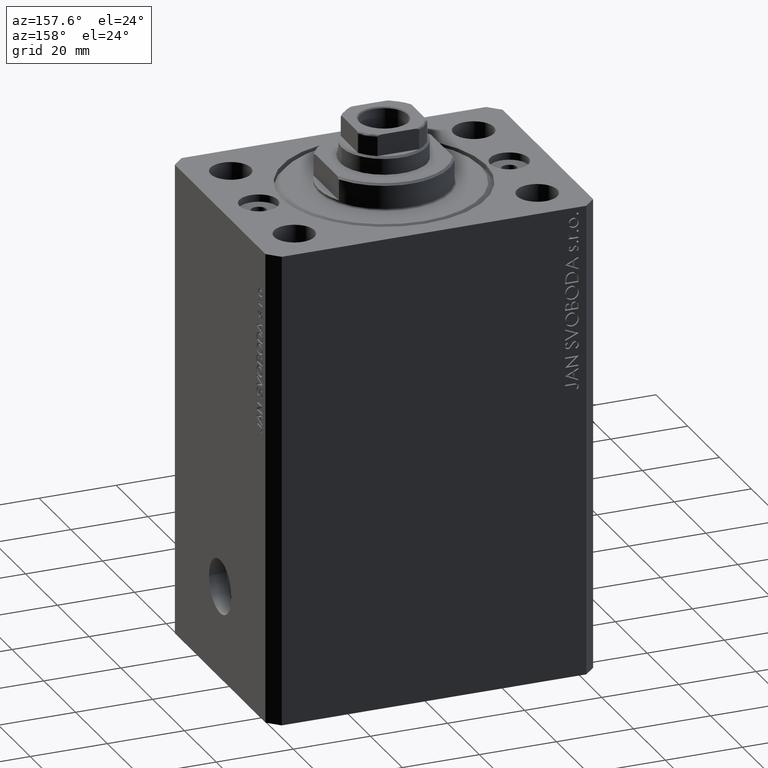
[diagram: clean part render]
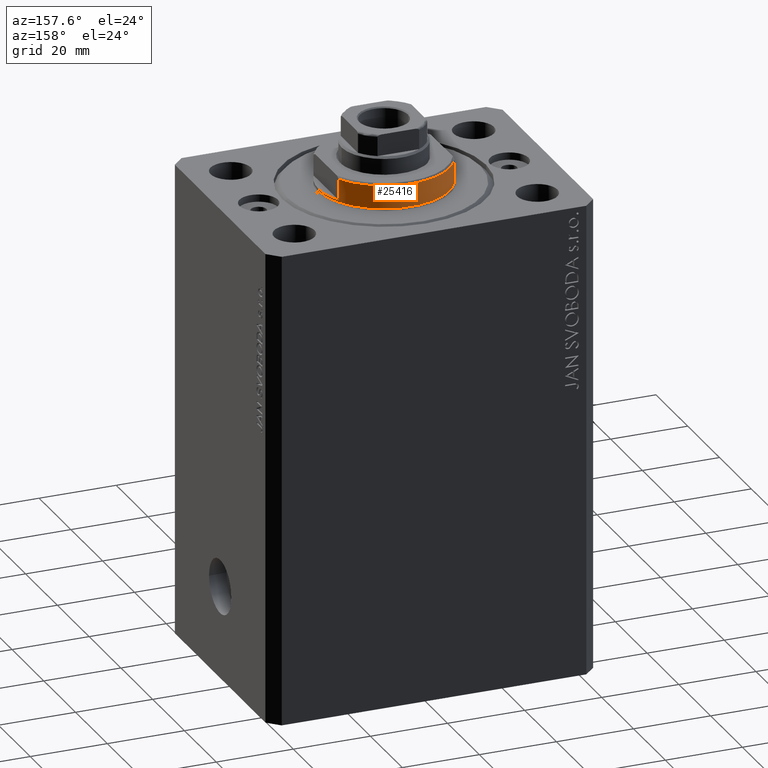
[diagram: same view with one face highlighted and labeled with its STEP entity id]
A machine part, auxiliary view. The second image highlights one B-rep face of the part: STEP entity #25416.
In plain terms, the highlighted cylindrical surface (partial cylindrical patch) has radius 17 mm, axis along (0, 0, -1).
Its self-contained STEP definition (entity closure, byte-faithful):
#416 = VECTOR ( 'NONE', #6359, 1000.000000000000000 ) ;
#1362 = CYLINDRICAL_SURFACE ( 'NONE', #25738, 17.00000000000000000 ) ;
#1771 = CARTESIAN_POINT ( 'NONE',  ( 0.000000000000000000, 0.000000000000000000, -1.000000000000000000 ) ) ;
#2391 = VECTOR ( 'NONE', #34756, 1000.000000000000000 ) ;
#3009 = ORIENTED_EDGE ( 'NONE', *, *, #3265, .F. ) ;
#3204 = DIRECTION ( 'NONE',  ( 0.000000000000000000, 0.000000000000000000, 1.000000000000000000 ) ) ;
#3265 = EDGE_CURVE ( 'NONE', #38803, #5087, #11822, .T. ) ;
#3711 = EDGE_CURVE ( 'NONE', #9244, #5087, #13200, .T. ) ;
#3788 = CARTESIAN_POINT ( 'NONE',  ( -17.00000000000000000, 2.081899558550500280E-15, -0.4999999999999995559 ) ) ;
#4323 = EDGE_CURVE ( 'NONE', #26597, #44139, #23985, .T. ) ;
#5087 = VERTEX_POINT ( 'NONE', #34083 ) ;
#5359 = DIRECTION ( 'NONE',  ( -1.000000000000000000, 0.000000000000000000, 0.000000000000000000 ) ) ;
#6081 = DIRECTION ( 'NONE',  ( -0.000000000000000000, -0.000000000000000000, -1.000000000000000000 ) ) ;
#6359 = DIRECTION ( 'NONE',  ( -0.000000000000000000, -0.000000000000000000, 1.000000000000000000 ) ) ;
#6544 = ORIENTED_EDGE ( 'NONE', *, *, #37179, .T. ) ;
#6675 = CARTESIAN_POINT ( 'NONE',  ( 14.99999999999999645, 8.000000000000003553, -1.000000000000000000 ) ) ;
#6931 = ORIENTED_EDGE ( 'NONE', *, *, #3711, .T. ) ;
#7599 = VERTEX_POINT ( 'NONE', #6675 ) ;
#7865 = CARTESIAN_POINT ( 'NONE',  ( 15.00000000000000000, 8.000000000000001776, -6.500000000000000888 ) ) ;
#9244 = VERTEX_POINT ( 'NONE', #3788 ) ;
#9283 = EDGE_CURVE ( 'NONE', #11512, #44139, #28437, .T. ) ;
#9489 = CARTESIAN_POINT ( 'NONE',  ( -17.00000000000000000, 2.081899558550500280E-15, -1.000000000000000000 ) ) ;
#9739 = AXIS2_PLACEMENT_3D ( 'NONE', #1771, #36086, #5359 ) ;
#11512 = VERTEX_POINT ( 'NONE', #40446 ) ;
#11727 = CIRCLE ( 'NONE', #15309, 17.00000000000000000 ) ;
#11822 = LINE ( 'NONE', #15180, #26099 ) ;
#11901 = EDGE_CURVE ( 'NONE', #22309, #7599, #40223, .T. ) ;
#13047 = EDGE_CURVE ( 'NONE', #7599, #38803, #42665, .T. ) ;
#13200 = CIRCLE ( 'NONE', #43978, 17.00000000000000000 ) ;
#13482 = CARTESIAN_POINT ( 'NONE',  ( 0.000000000000000000, 0.000000000000000000, -0.4999999999999995559 ) ) ;
#13708 = DIRECTION ( 'NONE',  ( 1.000000000000000000, 0.000000000000000000, 0.000000000000000000 ) ) ;
#14608 = CARTESIAN_POINT ( 'NONE',  ( 0.000000000000000000, 0.000000000000000000, -7.000000000000000000 ) ) ;
#15180 = CARTESIAN_POINT ( 'NONE',  ( 17.00000000000000000, 0.000000000000000000, -7.000000000000000000 ) ) ;
#15309 = AXIS2_PLACEMENT_3D ( 'NONE', #17555, #3204, #23614 ) ;
#17048 = CARTESIAN_POINT ( 'NONE',  ( 0.000000000000000000, 0.000000000000000000, -1.000000000000000000 ) ) ;
#17555 = CARTESIAN_POINT ( 'NONE',  ( 0.000000000000000000, 0.000000000000000000, -6.500000000000000000 ) ) ;
#17758 = DIRECTION ( 'NONE',  ( 1.000000000000000000, 0.000000000000000000, 0.000000000000000000 ) ) ;
#18936 = ORIENTED_EDGE ( 'NONE', *, *, #37589, .T. ) ;
#18983 = DIRECTION ( 'NONE',  ( -0.000000000000000000, -0.000000000000000000, 1.000000000000000000 ) ) ;
#21086 = CARTESIAN_POINT ( 'NONE',  ( -17.00000000000000000, 2.081899558550500280E-15, -7.000000000000000000 ) ) ;
#21778 = DIRECTION ( 'NONE',  ( -0.000000000000000000, -0.000000000000000000, 1.000000000000000000 ) ) ;
#21993 = FACE_OUTER_BOUND ( 'NONE', #28908, .T. ) ;
#22309 = VERTEX_POINT ( 'NONE', #7865 ) ;
#23459 = CARTESIAN_POINT ( 'NONE',  ( -14.99999999999999645, 8.000000000000003553, -1.000000000000000000 ) ) ;
#23614 = DIRECTION ( 'NONE',  ( -1.000000000000000000, 0.000000000000000000, 0.000000000000000000 ) ) ;
#23985 = CIRCLE ( 'NONE', #39737, 17.00000000000000000 ) ;
#24010 = CARTESIAN_POINT ( 'NONE',  ( 17.00000000000000000, 0.000000000000000000, -1.000000000000000000 ) ) ;
#25080 = CARTESIAN_POINT ( 'NONE',  ( -15.00000000000000000, 8.000000000000001776, -7.000000000000000000 ) ) ;
#25416 = ADVANCED_FACE ( 'NONE', ( #21993 ), #1362, .T. ) ;
#25738 = AXIS2_PLACEMENT_3D ( 'NONE', #14608, #21778, #17758 ) ;
#26099 = VECTOR ( 'NONE', #18983, 1000.000000000000000 ) ;
#26597 = VERTEX_POINT ( 'NONE', #9489 ) ;
#28239 = LINE ( 'NONE', #21086, #2391 ) ;
#28437 = LINE ( 'NONE', #25080, #34834 ) ;
#28908 = EDGE_LOOP ( 'NONE', ( #42314, #18936, #6931, #3009, #41000, #43043, #6544, #30559 ) ) ;
#30559 = ORIENTED_EDGE ( 'NONE', *, *, #9283, .T. ) ;
#34075 = DIRECTION ( 'NONE',  ( 0.000000000000000000, 0.000000000000000000, -1.000000000000000000 ) ) ;
#34083 = CARTESIAN_POINT ( 'NONE',  ( 17.00000000000000000, 0.000000000000000000, -0.4999999999999995559 ) ) ;
#34756 = DIRECTION ( 'NONE',  ( -0.000000000000000000, -0.000000000000000000, 1.000000000000000000 ) ) ;
#34834 = VECTOR ( 'NONE', #35388, 1000.000000000000000 ) ;
#35388 = DIRECTION ( 'NONE',  ( -0.000000000000000000, -0.000000000000000000, 1.000000000000000000 ) ) ;
#36086 = DIRECTION ( 'NONE',  ( 0.000000000000000000, 0.000000000000000000, -1.000000000000000000 ) ) ;
#37179 = EDGE_CURVE ( 'NONE', #22309, #11512, #11727, .T. ) ;
#37589 = EDGE_CURVE ( 'NONE', #26597, #9244, #28239, .T. ) ;
#38803 = VERTEX_POINT ( 'NONE', #24010 ) ;
#39737 = AXIS2_PLACEMENT_3D ( 'NONE', #17048, #34075, #44163 ) ;
#40223 = LINE ( 'NONE', #44022, #416 ) ;
#40446 = CARTESIAN_POINT ( 'NONE',  ( -15.00000000000000000, 8.000000000000001776, -6.500000000000000888 ) ) ;
#41000 = ORIENTED_EDGE ( 'NONE', *, *, #13047, .F. ) ;
#42314 = ORIENTED_EDGE ( 'NONE', *, *, #4323, .F. ) ;
#42665 = CIRCLE ( 'NONE', #9739, 17.00000000000000000 ) ;
#43043 = ORIENTED_EDGE ( 'NONE', *, *, #11901, .F. ) ;
#43978 = AXIS2_PLACEMENT_3D ( 'NONE', #13482, #6081, #13708 ) ;
#44022 = CARTESIAN_POINT ( 'NONE',  ( 15.00000000000000000, 8.000000000000001776, -7.000000000000000000 ) ) ;
#44139 = VERTEX_POINT ( 'NONE', #23459 ) ;
#44163 = DIRECTION ( 'NONE',  ( -1.000000000000000000, 0.000000000000000000, 0.000000000000000000 ) ) ;